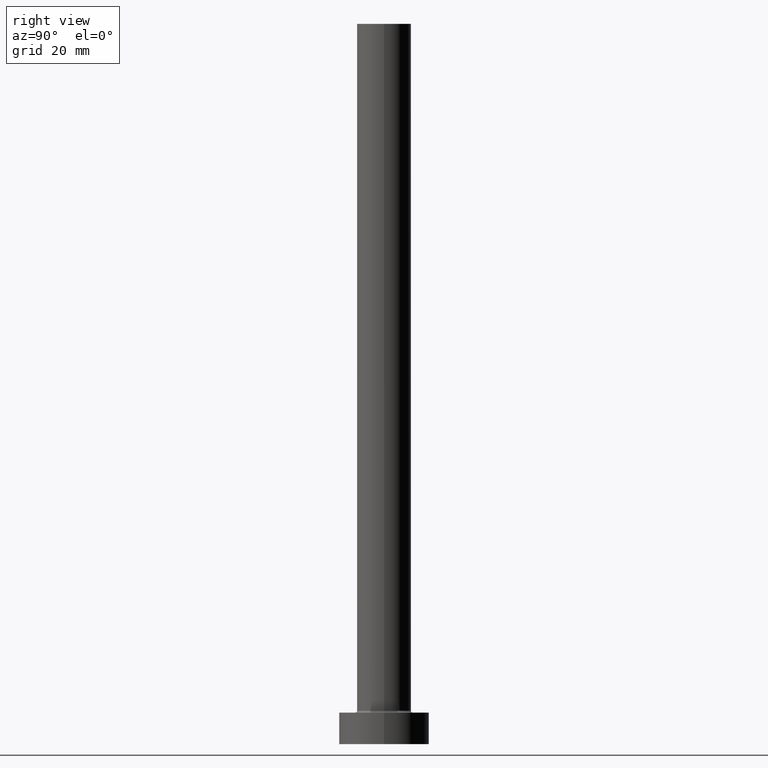
[diagram: clean part render]
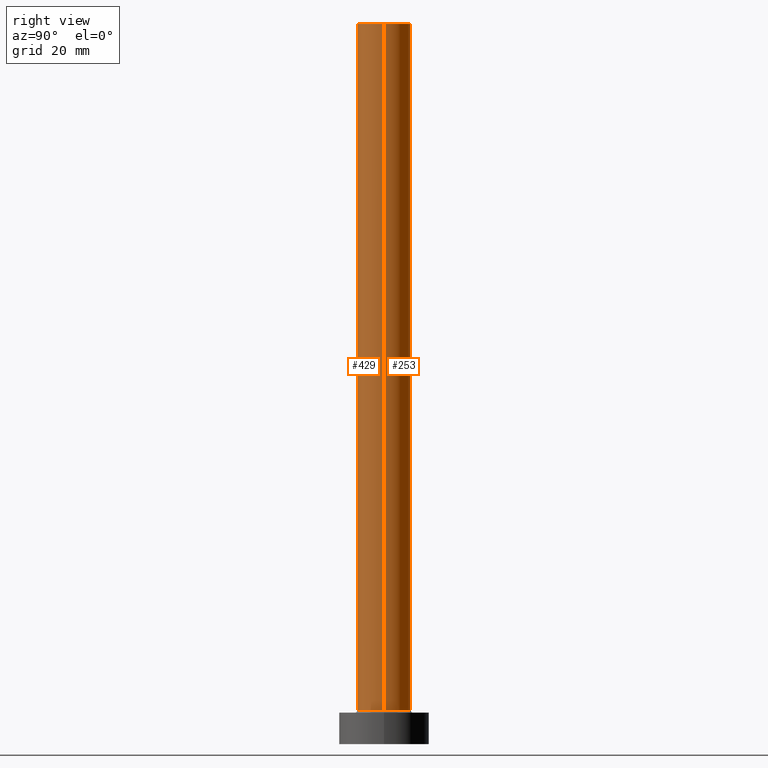
[diagram: same view with one multi-face feature highlighted, each face labeled with its STEP entity id]
A machine part, right view. The highlighted faces form ONE feature: a constant-radius fillet chain: 2 tangent blend faces with common blend radius 6 mm. The faces share edges in the B-rep.
Their STEP definitions:
[1] entity #429 (Cylinder):
#4 = CARTESIAN_POINT ( 'NONE',  ( -6.000000000000000888, 0.000000000000000000, 7.500000000000007105 ) ) ;
#8 = CARTESIAN_POINT ( 'NONE',  ( 0.000000000000000000, 0.000000000000000000, 160.0000000000000000 ) ) ;
#20 = CYLINDRICAL_SURFACE ( 'NONE', #198, 6.000000000000000888 ) ;
#23 = FACE_OUTER_BOUND ( 'NONE', #413, .T. ) ;
#31 = ORIENTED_EDGE ( 'NONE', *, *, #151, .F. ) ;
#34 = VECTOR ( 'NONE', #273, 1000.000000000000000 ) ;
#54 = VERTEX_POINT ( 'NONE', #106 ) ;
#55 = CARTESIAN_POINT ( 'NONE',  ( 0.000000000000000000, 0.000000000000000000, 7.500000000000007105 ) ) ;
#94 = ORIENTED_EDGE ( 'NONE', *, *, #291, .F. ) ;
#106 = CARTESIAN_POINT ( 'NONE',  ( -6.000000000000000888, 0.000000000000000000, 160.0000000000000000 ) ) ;
#108 = EDGE_CURVE ( 'NONE', #54, #225, #452, .T. ) ;
#110 = CIRCLE ( 'NONE', #268, 6.000000000000000888 ) ;
#123 = VERTEX_POINT ( 'NONE', #347 ) ;
#131 = CARTESIAN_POINT ( 'NONE',  ( -6.000000000000000888, 0.000000000000000000, 160.0000000000000000 ) ) ;
#149 = LINE ( 'NONE', #318, #162 ) ;
#151 = EDGE_CURVE ( 'NONE', #54, #204, #245, .T. ) ;
#152 = CARTESIAN_POINT ( 'NONE',  ( 6.000000000000000888, 7.347880794884120722E-16, 160.0000000000000000 ) ) ;
#154 = ORIENTED_EDGE ( 'NONE', *, *, #108, .T. ) ;
#162 = VECTOR ( 'NONE', #293, 1000.000000000000000 ) ;
#190 = CARTESIAN_POINT ( 'NONE',  ( 0.000000000000000000, 0.000000000000000000, 160.0000000000000000 ) ) ;
#198 = AXIS2_PLACEMENT_3D ( 'NONE', #190, #300, #269 ) ;
#204 = VERTEX_POINT ( 'NONE', #152 ) ;
#225 = VERTEX_POINT ( 'NONE', #4 ) ;
#245 = CIRCLE ( 'NONE', #419, 6.000000000000000888 ) ;
#268 = AXIS2_PLACEMENT_3D ( 'NONE', #55, #384, #407 ) ;
#269 = DIRECTION ( 'NONE',  ( -1.000000000000000000, 0.000000000000000000, 0.000000000000000000 ) ) ;
#273 = DIRECTION ( 'NONE',  ( -0.000000000000000000, -0.000000000000000000, -1.000000000000000000 ) ) ;
#291 = EDGE_CURVE ( 'NONE', #204, #123, #149, .T. ) ;
#293 = DIRECTION ( 'NONE',  ( -0.000000000000000000, -0.000000000000000000, -1.000000000000000000 ) ) ;
#300 = DIRECTION ( 'NONE',  ( -0.000000000000000000, -0.000000000000000000, -1.000000000000000000 ) ) ;
#318 = CARTESIAN_POINT ( 'NONE',  ( 6.000000000000000888, 7.347880794884120722E-16, 160.0000000000000000 ) ) ;
#347 = CARTESIAN_POINT ( 'NONE',  ( 6.000000000000000888, 7.347880794884120722E-16, 7.500000000000007105 ) ) ;
#354 = DIRECTION ( 'NONE',  ( 1.000000000000000000, 0.000000000000000000, 0.000000000000000000 ) ) ;
#355 = EDGE_CURVE ( 'NONE', #225, #123, #110, .T. ) ;
#362 = ORIENTED_EDGE ( 'NONE', *, *, #355, .T. ) ;
#384 = DIRECTION ( 'NONE',  ( 0.000000000000000000, 0.000000000000000000, 1.000000000000000000 ) ) ;
#390 = DIRECTION ( 'NONE',  ( 0.000000000000000000, 0.000000000000000000, 1.000000000000000000 ) ) ;
#407 = DIRECTION ( 'NONE',  ( 1.000000000000000000, 0.000000000000000000, 0.000000000000000000 ) ) ;
#413 = EDGE_LOOP ( 'NONE', ( #94, #31, #154, #362 ) ) ;
#419 = AXIS2_PLACEMENT_3D ( 'NONE', #8, #390, #354 ) ;
#429 = ADVANCED_FACE ( 'NONE', ( #23 ), #20, .T. ) ;
#452 = LINE ( 'NONE', #131, #34 ) ;
[2] entity #253 (Cylinder):
#4 = CARTESIAN_POINT ( 'NONE',  ( -6.000000000000000888, 0.000000000000000000, 7.500000000000007105 ) ) ;
#5 = AXIS2_PLACEMENT_3D ( 'NONE', #52, #363, #327 ) ;
#21 = EDGE_LOOP ( 'NONE', ( #199, #402, #191, #294 ) ) ;
#34 = VECTOR ( 'NONE', #273, 1000.000000000000000 ) ;
#52 = CARTESIAN_POINT ( 'NONE',  ( 0.000000000000000000, 0.000000000000000000, 7.500000000000007105 ) ) ;
#54 = VERTEX_POINT ( 'NONE', #106 ) ;
#78 = FACE_OUTER_BOUND ( 'NONE', #21, .T. ) ;
#85 = DIRECTION ( 'NONE',  ( -1.000000000000000000, 0.000000000000000000, 0.000000000000000000 ) ) ;
#87 = CYLINDRICAL_SURFACE ( 'NONE', #153, 6.000000000000000888 ) ;
#106 = CARTESIAN_POINT ( 'NONE',  ( -6.000000000000000888, 0.000000000000000000, 160.0000000000000000 ) ) ;
#108 = EDGE_CURVE ( 'NONE', #54, #225, #452, .T. ) ;
#118 = CIRCLE ( 'NONE', #5, 6.000000000000000888 ) ;
#123 = VERTEX_POINT ( 'NONE', #347 ) ;
#131 = CARTESIAN_POINT ( 'NONE',  ( -6.000000000000000888, 0.000000000000000000, 160.0000000000000000 ) ) ;
#140 = AXIS2_PLACEMENT_3D ( 'NONE', #234, #336, #303 ) ;
#149 = LINE ( 'NONE', #318, #162 ) ;
#152 = CARTESIAN_POINT ( 'NONE',  ( 6.000000000000000888, 7.347880794884120722E-16, 160.0000000000000000 ) ) ;
#153 = AXIS2_PLACEMENT_3D ( 'NONE', #226, #184, #85 ) ;
#162 = VECTOR ( 'NONE', #293, 1000.000000000000000 ) ;
#184 = DIRECTION ( 'NONE',  ( -0.000000000000000000, -0.000000000000000000, -1.000000000000000000 ) ) ;
#191 = ORIENTED_EDGE ( 'NONE', *, *, #282, .T. ) ;
#199 = ORIENTED_EDGE ( 'NONE', *, *, #422, .F. ) ;
#204 = VERTEX_POINT ( 'NONE', #152 ) ;
#225 = VERTEX_POINT ( 'NONE', #4 ) ;
#226 = CARTESIAN_POINT ( 'NONE',  ( 0.000000000000000000, 0.000000000000000000, 160.0000000000000000 ) ) ;
#234 = CARTESIAN_POINT ( 'NONE',  ( 0.000000000000000000, 0.000000000000000000, 160.0000000000000000 ) ) ;
#253 = ADVANCED_FACE ( 'NONE', ( #78 ), #87, .T. ) ;
#273 = DIRECTION ( 'NONE',  ( -0.000000000000000000, -0.000000000000000000, -1.000000000000000000 ) ) ;
#282 = EDGE_CURVE ( 'NONE', #123, #225, #118, .T. ) ;
#291 = EDGE_CURVE ( 'NONE', #204, #123, #149, .T. ) ;
#293 = DIRECTION ( 'NONE',  ( -0.000000000000000000, -0.000000000000000000, -1.000000000000000000 ) ) ;
#294 = ORIENTED_EDGE ( 'NONE', *, *, #108, .F. ) ;
#303 = DIRECTION ( 'NONE',  ( 1.000000000000000000, 0.000000000000000000, 0.000000000000000000 ) ) ;
#318 = CARTESIAN_POINT ( 'NONE',  ( 6.000000000000000888, 7.347880794884120722E-16, 160.0000000000000000 ) ) ;
#327 = DIRECTION ( 'NONE',  ( 1.000000000000000000, 0.000000000000000000, 0.000000000000000000 ) ) ;
#336 = DIRECTION ( 'NONE',  ( 0.000000000000000000, 0.000000000000000000, 1.000000000000000000 ) ) ;
#342 = CIRCLE ( 'NONE', #140, 6.000000000000000888 ) ;
#347 = CARTESIAN_POINT ( 'NONE',  ( 6.000000000000000888, 7.347880794884120722E-16, 7.500000000000007105 ) ) ;
#363 = DIRECTION ( 'NONE',  ( 0.000000000000000000, 0.000000000000000000, 1.000000000000000000 ) ) ;
#402 = ORIENTED_EDGE ( 'NONE', *, *, #291, .T. ) ;
#422 = EDGE_CURVE ( 'NONE', #204, #54, #342, .T. ) ;
#452 = LINE ( 'NONE', #131, #34 ) ;